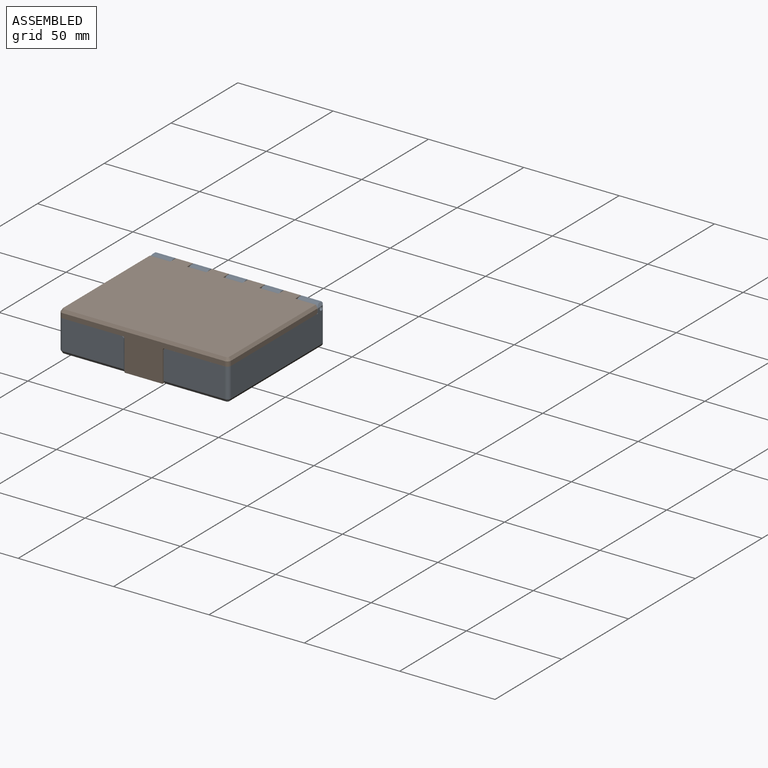
[diagram: assembled view]
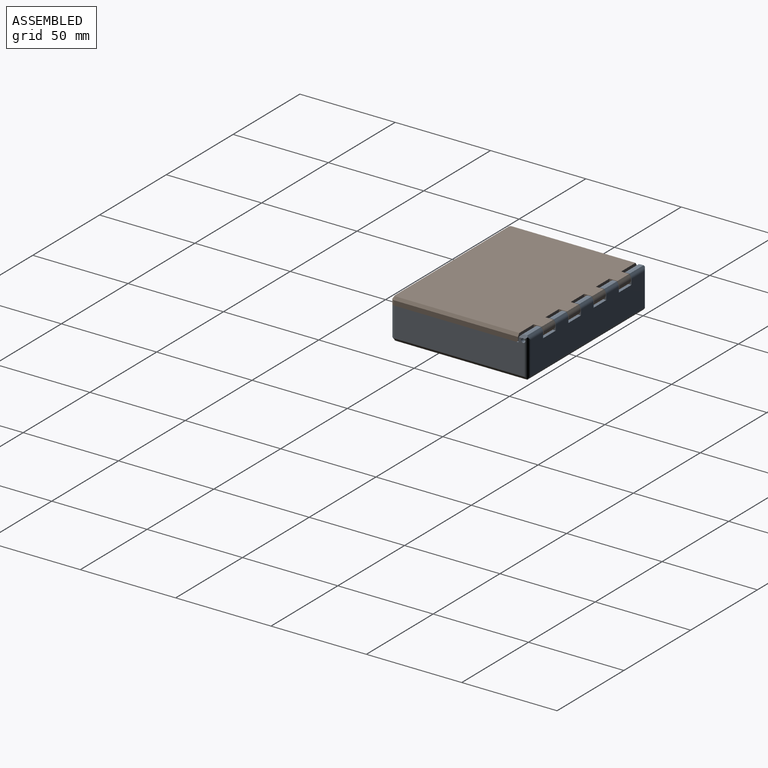
[diagram: assembled view, second angle]
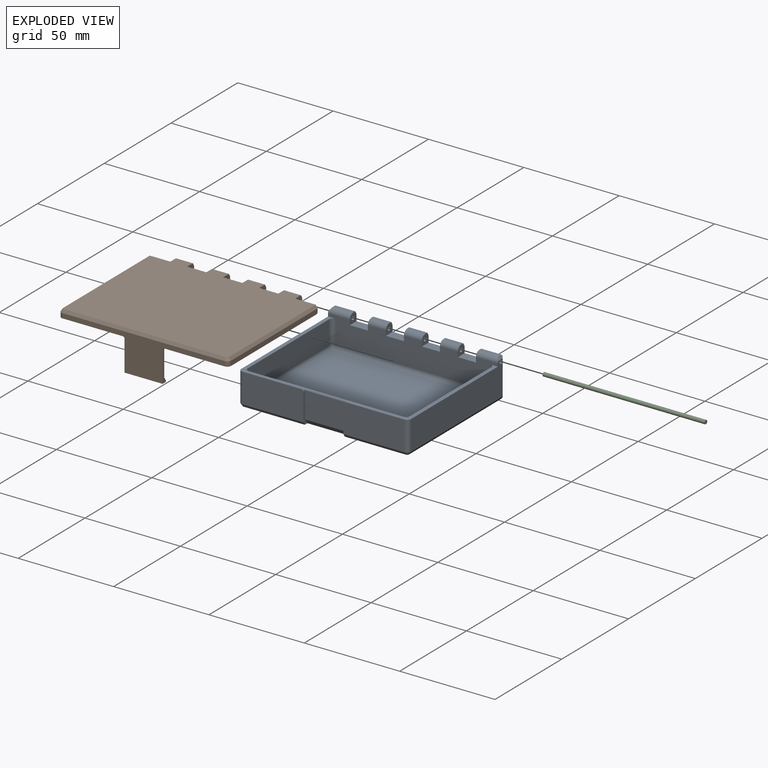
[diagram: exploded view]
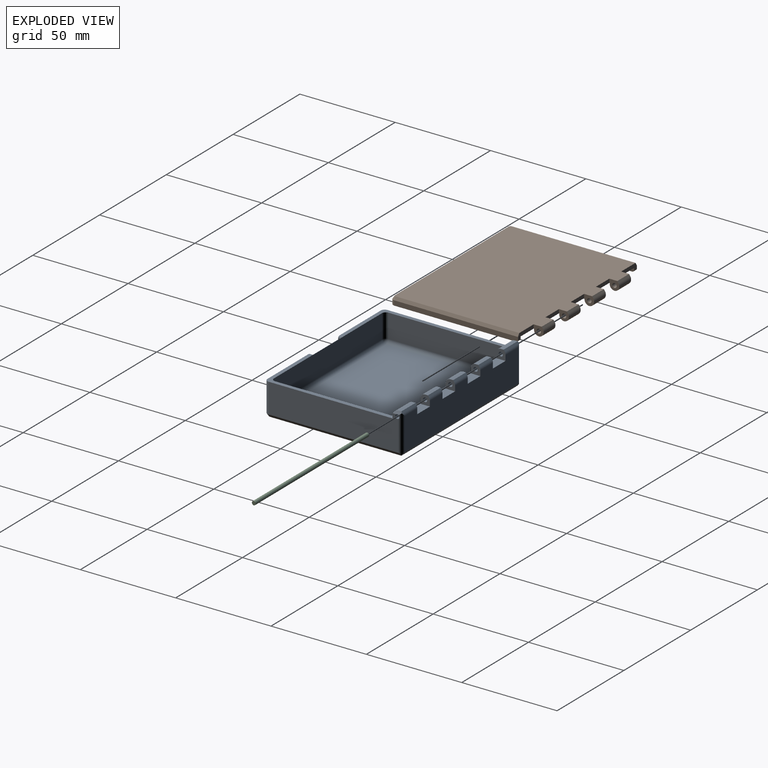
[diagram: exploded view, second angle]
ASSEMBLY  parts=3 mates=2
PART A: 84 faces, bbox 89x72x21 mm
  f0: plane 85x17.24mm, normal (0,1,0), area 1360.1mm2, adj f5,f20,f21,f22,f24,f25,f27,f28
  f1: plane 0.04x0.02mm, normal (1,0,0), area 0mm2, adj f2,f5,f79
  f2: cylinder r=1.1mm len=11.44mm, axis (-1,0,0), area 78.9mm2, adj f1,f5,f14,f30,f79
  f3: cylinder r=2.5mm len=11.44mm, axis (-1,0,0), area 43.1mm2, adj f12,f14,f30,f31,f79
  f4: plane 10.87x0.88mm, normal (0,0.83,0.55), area 11.2mm2, adj f5,f30,f31,f60,f79
  f5: cylinder r=2mm len=19.76mm, axis (0,0,1), area 57.2mm2, adj f0,f1,f2,f4,f14,f56,f57,f60
  f6: plane 68x18mm, normal (-1,0,0), area 1058.5mm2, adj f8,f12,f39,f44,f48,f55,f77,f78
  f7: plane 10.44x1.5mm, normal (0,0,1), area 15.7mm2, adj f20,f48,f52,f78
  f8: plane 67x33mm, normal (0,0,1), area 196.9mm2, adj f6,f9,f11,f12,f17,f37,f39,f65
  f9: plane 32x15.5mm, normal (0,-1,0), area 495.8mm2, adj f8,f35,f37,f39,f53
  f10: plane 67x33mm, normal (0,0,1), area 196.9mm2, adj f12,f13,f14,f16,f17,f36,f40,f67
  f11: plane 61x12.5mm, normal (1,0,0), area 762.5mm2, adj f8,f65,f70,f71
  f12: plane 89x14mm, normal (0,-1,0), area 1049.7mm2, adj f3,f6,f8,f10,f14,f20,f21,f22
  f13: plane 61x12.5mm, normal (-1,0,0), area 762.5mm2, adj f10,f67,f72,f73
  f14: plane 68x18mm, normal (1,0,0), area 1058.5mm2, adj f2,f3,f5,f10,f12,f40,f57,f79
  f15: plane 0.04x0.02mm, normal (-1,0,0), area 0mm2, adj f44,f77,f78
  f16: plane 32x15.5mm, normal (0,-1,0), area 495.8mm2, adj f10,f34,f36,f40,f59
  f17: plane 81x12.5mm, normal (0,1,0), area 1011.5mm2, adj f8,f10,f36,f37,f38,f70,f73,f76
  f18: plane 87x70mm, normal (0,0,-1), area 6048.6mm2, adj f33,f34,f35,f53,f54,f55,f56,f57
  f19: plane 81x61mm, normal (0,0,1), area 4941mm2, adj f66,f71,f72,f76
  f20: plane 5.05x5mm, normal (1,0,0), area 19.3mm2, adj f0,f7,f12,f44,f48,f52,f64,f80
  f21: plane 5.05x5mm, normal (1,0,0), area 19.3mm2, adj f0,f12,f23,f43,f47,f51,f63,f81
  f22: plane 5.05x5mm, normal (-1,0,0), area 19.3mm2, adj f0,f12,f23,f43,f47,f51,f63,f80
  f23: plane 9.44x1.5mm, normal (0,0,1), area 14.2mm2, adj f21,f22,f47,f51
  f24: plane 5.05x5mm, normal (1,0,0), area 19.3mm2, adj f0,f12,f26,f42,f46,f50,f62,f82
  f25: plane 5.05x5mm, normal (-1,0,0), area 19.3mm2, adj f0,f12,f26,f42,f46,f50,f62,f81
  f26: plane 9.44x1.5mm, normal (0,0,1), area 14.2mm2, adj f24,f25,f46,f50
  f27: plane 5.05x5mm, normal (1,0,0), area 19.3mm2, adj f0,f12,f29,f41,f45,f49,f61,f83
  f28: plane 5.05x5mm, normal (-1,0,0), area 19.3mm2, adj f0,f12,f29,f41,f45,f49,f61,f82
  f29: plane 9.44x1.5mm, normal (0,0,1), area 14.2mm2, adj f27,f28,f45,f49
  f30: plane 5.05x5mm, normal (-1,0,0), area 19.3mm2, adj f0,f2,f3,f4,f12,f31,f60,f83
  f31: plane 10.44x1.5mm, normal (0,0,1), area 15.7mm2, adj f3,f4,f30,f79
  f32: plane 21x13.64mm, normal (0,-1,0), area 286.5mm2, adj f33,f34,f35,f38
  f33: plane 21x2.36mm, normal (0,-0.82,-0.57), area 60.4mm2, adj f18,f32,f34,f35
  f34: plane 16x2.95mm, normal (-1,0,0), area 22mm2, adj f16,f18,f32,f33,f36,f59
  f35: plane 16x2.95mm, normal (1,0,0), area 22mm2, adj f9,f18,f32,f33,f37,f53
  f36: cylinder r=1mm len=2mm, axis (0,-1,0), area 2.6mm2, adj f10,f16,f17,f34,f38
  f37: cylinder r=1mm len=2mm, axis (0,1,0), area 2.6mm2, adj f8,f9,f17,f35,f38
  f38: cylinder r=1mm len=22.4mm, axis (-1,0,0), area 27.2mm2, adj f17,f32,f36,f37
  f39: cylinder r=2mm len=15.5mm, axis (0,0,1), area 48.7mm2, adj f6,f8,f9,f54
  f40: cylinder r=2mm len=15.5mm, axis (0,0,-1), area 48.7mm2, adj f10,f14,f16,f58
  f41: cylinder r=1.1mm len=9.44mm, axis (-1,0,0), area 65.3mm2, adj f27,f28
  f42: cylinder r=1.1mm len=9.44mm, axis (-1,0,0), area 65.3mm2, adj f24,f25
  f43: cylinder r=1.1mm len=9.44mm, axis (-1,0,0), area 65.3mm2, adj f21,f22
  f44: cylinder r=1.1mm len=11.44mm, axis (-1,0,0), area 78.9mm2, adj f6,f15,f20,f77,f78
  f45: cylinder r=2.5mm len=9.44mm, axis (-1,0,0), area 37.1mm2, adj f12,f27,f28,f29
  f46: cylinder r=2.5mm len=9.44mm, axis (-1,0,0), area 37.1mm2, adj f12,f24,f25,f26
  f47: cylinder r=2.5mm len=9.44mm, axis (-1,0,0), area 37.1mm2, adj f12,f21,f22,f23
  f48: cylinder r=2.5mm len=11.44mm, axis (-1,0,0), area 43.1mm2, adj f6,f7,f12,f20,f78
  f49: plane 9.44x0.87mm, normal (0,0.83,0.55), area 9.9mm2, adj f27,f28,f29,f61
  f50: plane 9.44x0.87mm, normal (0,0.83,0.55), area 9.9mm2, adj f24,f25,f26,f62
  f51: plane 9.44x0.87mm, normal (0,0.83,0.55), area 9.9mm2, adj f21,f22,f23,f63
  f52: plane 10.87x0.88mm, normal (0,0.83,0.55), area 11.2mm2, adj f7,f20,f64,f77,f78
  f53: plane 32x1.5mm, normal (0,-0.83,-0.55), area 57.7mm2, adj f9,f18,f35,f54
  f54: cone r=1mm half-angle=33.7deg, axis (0,0,1), area 4.2mm2, adj f18,f39,f53,f55
  f55: plane 69.41x1.5mm, normal (-0.83,0,-0.55), area 124.5mm2, adj f6,f18,f54,f56,f77
  f56: plane 87.83x1.5mm, normal (0,0.83,-0.55), area 157.1mm2, adj f0,f5,f18,f55,f57,f77
  f57: plane 69.41x1.5mm, normal (0.83,0,-0.55), area 124.5mm2, adj f5,f14,f18,f56,f58
  f58: cone r=1mm half-angle=33.7deg, axis (0,0,1), area 4.2mm2, adj f18,f40,f57,f59
  f59: plane 32x1.5mm, normal (0,-0.83,-0.55), area 57.7mm2, adj f16,f18,f34,f58
  f60: cylinder r=2.5mm len=10.67mm, axis (-1,0,0), area 14.8mm2, adj f0,f4,f5,f30
  f61: cylinder r=2.5mm len=9.44mm, axis (-1,0,0), area 13.9mm2, adj f0,f27,f28,f49
  f62: cylinder r=2.5mm len=9.44mm, axis (-1,0,0), area 13.9mm2, adj f0,f24,f25,f50
  f63: cylinder r=2.5mm len=9.44mm, axis (-1,0,0), area 13.9mm2, adj f0,f21,f22,f51
  f64: cylinder r=2.5mm len=10.67mm, axis (-1,0,0), area 14.8mm2, adj f0,f20,f52,f77
  f65: cylinder r=2mm len=12.5mm, axis (0,0,1), area 39.3mm2, adj f8,f11,f12,f68
  f66: cylinder r=2mm len=81mm, axis (1,0,0), area 254.5mm2, adj f12,f19,f68,f69
  f67: cylinder r=2mm len=12.5mm, axis (0,0,-1), area 39.3mm2, adj f10,f12,f13,f69
  f68: sphere r=2mm, area 6.3mm2, adj f65,f66,f71
  f69: sphere r=2mm, area 6.3mm2, adj f66,f67,f72
  f70: cylinder r=2mm len=12.5mm, axis (0,0,-1), area 39.3mm2, adj f8,f11,f17,f74
  f71: cylinder r=2mm len=61mm, axis (0,1,0), area 191.6mm2, adj f11,f19,f68,f74
  f72: cylinder r=2mm len=61mm, axis (0,-1,0), area 191.6mm2, adj f13,f19,f69,f75
  f73: cylinder r=2mm len=12.5mm, axis (0,0,1), area 39.3mm2, adj f10,f13,f17,f75
  f74: sphere r=2mm, area 6.3mm2, adj f70,f71,f76
  f75: sphere r=2mm, area 6.3mm2, adj f72,f73,f76
  f76: cylinder r=2mm len=81mm, axis (-1,0,0), area 254.5mm2, adj f17,f19,f74,f75
  f77: cylinder r=2mm len=19.76mm, axis (0,0,-1), area 57.2mm2, adj f0,f6,f15,f44,f52,f55,f56,f64
  f78: plane 4.21x1.5mm, normal (-0.83,0,0.55), area 5.7mm2, adj f6,f7,f15,f44,f48,f52,f77
  f79: plane 4.21x1.5mm, normal (0.83,0,0.55), area 5.7mm2, adj f1,f2,f3,f4,f5,f14,f31
  f80: plane 9.44x5mm, normal (0,0,1), area 47.2mm2, adj f0,f12,f20,f22
  f81: plane 9.44x5mm, normal (0,0,1), area 47.2mm2, adj f0,f12,f21,f25
  f82: plane 9.44x5mm, normal (0,0,1), area 47.2mm2, adj f0,f12,f24,f28
  f83: plane 9.44x5mm, normal (0,0,1), area 47.2mm2, adj f0,f12,f27,f30
PART B: 80 faces, bbox 89x72x21 mm
  f0: plane 62.8x2mm, normal (-1,0,0), area 125.4mm2, adj f1,f6,f62,f63,f66
  f1: plane 85x65mm, normal (0,0,1), area 5513.4mm2, adj f0,f8,f9,f11,f12,f13,f15,f16
  f2: plane 20x0.4mm, normal (0,0,1), area 8mm2, adj f5,f28,f40,f53
  f3: plane 20x0.4mm, normal (0,0,1), area 8mm2, adj f5,f40,f50,f52
  f4: plane 20x0.4mm, normal (0,0,1), area 8mm2, adj f5,f40,f47,f49
  f5: plane 16x2.48mm, normal (1,0,0), area 20.9mm2, adj f2,f3,f4,f28,f38,f39,f43,f46
  f6: plane 65.8x33.5mm, normal (0,0,1), area 194.6mm2, adj f0,f24,f26,f28,f43,f45,f63,f66
  f7: plane 87x70mm, normal (0,0,-1), area 5872.8mm2, adj f9,f11,f13,f15,f17,f19,f21,f22
  f8: plane 8.84x0.5mm, normal (0,-1,0), area 4.4mm2, adj f1,f9,f11,f37
  f9: plane 5.2x5mm, normal (1,0,0), area 17.8mm2, adj f1,f7,f8,f10,f33,f37,f58,f72
  f10: plane 8.84x0.24mm, normal (0,1,0), area 2.1mm2, adj f9,f11,f37,f79
  f11: plane 5.2x5mm, normal (-1,0,0), area 17.8mm2, adj f1,f7,f8,f10,f33,f37,f61,f72
  f12: plane 8.84x0.5mm, normal (0,-1,0), area 4.4mm2, adj f1,f13,f15,f36
  f13: plane 5.2x5mm, normal (1,0,0), area 17.8mm2, adj f1,f7,f12,f14,f32,f36,f60,f73
  f14: plane 8.84x0.24mm, normal (0,1,0), area 2.1mm2, adj f13,f15,f36,f78
  f15: plane 5.2x5mm, normal (-1,0,0), area 17.8mm2, adj f1,f7,f12,f14,f32,f36,f58,f73
  f16: plane 8.84x0.5mm, normal (0,-1,0), area 4.4mm2, adj f1,f17,f19,f35
  f17: plane 5.2x5mm, normal (1,0,0), area 17.8mm2, adj f1,f7,f16,f18,f31,f35,f59,f74
  f18: plane 8.84x0.24mm, normal (0,1,0), area 2.1mm2, adj f17,f19,f35,f77
  f19: plane 5.2x5mm, normal (-1,0,0), area 17.8mm2, adj f1,f7,f16,f18,f31,f35,f60,f74
  f20: plane 8.84x0.5mm, normal (0,-1,0), area 4.4mm2, adj f1,f21,f22,f34
  f21: plane 5.2x5mm, normal (-1,0,0), area 17.8mm2, adj f1,f7,f20,f23,f30,f34,f59,f75
  f22: plane 5.2x5mm, normal (1,0,0), area 17.8mm2, adj f1,f7,f20,f23,f30,f34,f62,f75
  f23: plane 8.84x0.24mm, normal (0,1,0), area 2.1mm2, adj f21,f22,f34,f76
  f24: plane 81x2mm, normal (0,1,0), area 162mm2, adj f1,f6,f29,f42,f63,f64
  f25: plane 62.8x2mm, normal (1,0,0), area 125.4mm2, adj f1,f29,f61,f64,f65
  f26: plane 64.8x2.5mm, normal (1,0,0), area 161.8mm2, adj f6,f45,f62,f66,f71
  f27: plane 64.8x2.5mm, normal (-1,0,0), area 161.8mm2, adj f29,f44,f61,f65,f67
  f28: plane 85x19.5mm, normal (0,-1,0), area 552.9mm2, adj f2,f5,f6,f29,f40,f41,f43,f44
  f29: plane 65.8x33.5mm, normal (0,0,1), area 194.6mm2, adj f24,f25,f27,f28,f41,f44,f64,f65
  f30: cylinder r=1.15mm len=8.84mm, axis (-1,0,0), area 63.9mm2, adj f21,f22
  f31: cylinder r=1.15mm len=8.84mm, axis (-1,0,0), area 63.9mm2, adj f17,f19
  f32: cylinder r=1.15mm len=8.84mm, axis (-1,0,0), area 63.9mm2, adj f13,f15
  f33: cylinder r=1.15mm len=8.84mm, axis (-1,0,0), area 63.9mm2, adj f9,f11
  f34: cylinder r=2.5mm len=8.84mm, axis (1,0,0), area 69.5mm2, adj f20,f21,f22,f23
  f35: cylinder r=2.5mm len=8.84mm, axis (-1,0,0), area 69.5mm2, adj f16,f17,f18,f19
  f36: cylinder r=2.5mm len=8.84mm, axis (-1,0,0), area 69.5mm2, adj f12,f13,f14,f15
  f37: cylinder r=2.5mm len=8.84mm, axis (-1,0,0), area 69.5mm2, adj f8,f9,f10,f11
  f38: plane 20x1.57mm, normal (0,0.82,-0.57), area 38.2mm2, adj f5,f40,f55,f57
  f39: plane 20x13.36mm, normal (0,1,0), area 267.3mm2, adj f5,f40,f41,f42,f43,f55
  f40: plane 16x2.48mm, normal (-1,0,0), area 20.9mm2, adj f2,f3,f4,f28,f38,f39,f41,f46
  f41: cylinder r=1mm len=2mm, axis (0,1,0), area 2.4mm2, adj f28,f29,f39,f40,f42
  f42: cylinder r=1mm len=22mm, axis (-1,0,0), area 28.2mm2, adj f24,f39,f41,f43
  f43: cylinder r=1mm len=2mm, axis (0,-1,0), area 2.4mm2, adj f5,f6,f28,f39,f42
  f44: cylinder r=2mm len=2.5mm, axis (0,0,-1), area 7.9mm2, adj f27,f28,f29,f68
  f45: cylinder r=2mm len=2.5mm, axis (0,0,1), area 7.9mm2, adj f6,f26,f28,f70
  f46: plane 20x0.3mm, normal (0,-1,0), area 6mm2, adj f5,f40,f48,f56
  f47: plane 20x0.3mm, normal (0,1,0), area 6mm2, adj f4,f5,f40,f48
  f48: plane 20x0.3mm, normal (0,0,1), area 6mm2, adj f5,f40,f46,f47
  f49: plane 20x0.3mm, normal (0,-1,0), area 6mm2, adj f4,f5,f40,f51
  f50: plane 20x0.3mm, normal (0,1,0), area 6mm2, adj f3,f5,f40,f51
  f51: plane 20x0.3mm, normal (0,0,1), area 6mm2, adj f5,f40,f49,f50
  f52: plane 20x0.3mm, normal (0,-1,0), area 6mm2, adj f3,f5,f40,f54
  f53: plane 20x0.3mm, normal (0,1,0), area 6mm2, adj f2,f5,f40,f54
  f54: plane 20x0.3mm, normal (0,0,1), area 6mm2, adj f5,f40,f52,f53
  f55: cylinder r=0.5mm len=20mm, axis (-1,0,0), area 6.1mm2, adj f5,f38,f39,f40
  f56: cylinder r=0.9mm len=20mm, axis (-1,0,0), area 5.5mm2, adj f5,f40,f46,f57
  f57: cylinder r=0.5mm len=20mm, axis (-1,0,0), area 14.2mm2, adj f5,f38,f40,f56
  f58: plane 10.04x2mm, normal (0,1,0), area 20.1mm2, adj f1,f7,f9,f15
  f59: plane 10.04x2mm, normal (0,1,0), area 20.1mm2, adj f1,f7,f17,f21
  f60: plane 10.04x2mm, normal (0,1,0), area 20.1mm2, adj f1,f7,f13,f19
  f61: plane 11.74x3mm, normal (0,1,0), area 24.7mm2, adj f1,f7,f11,f25,f27,f65,f67
  f62: plane 11.74x3mm, normal (0,1,0), area 24.7mm2, adj f0,f1,f7,f22,f26,f66,f71
  f63: cylinder r=2mm len=2mm, axis (0,0,1), area 6.3mm2, adj f0,f1,f6,f24
  f64: cylinder r=2mm len=2mm, axis (0,0,1), area 6.3mm2, adj f1,f24,f25,f29
  f65: cylinder r=1mm len=2mm, axis (1,0,0), area 3.1mm2, adj f25,f27,f29,f61
  f66: cylinder r=1mm len=2mm, axis (1,0,0), area 3.1mm2, adj f0,f6,f26,f62
  f67: plane 64.8x1.5mm, normal (-0.83,0,-0.55), area 116.8mm2, adj f7,f27,f61,f68
  f68: cone r=1mm half-angle=33.7deg, axis (0,0,1), area 4.2mm2, adj f7,f44,f67,f69
  f69: plane 85x1.5mm, normal (0,-0.83,-0.55), area 153.2mm2, adj f7,f28,f68,f70
  f70: cone r=1mm half-angle=33.7deg, axis (0,0,1), area 4.2mm2, adj f7,f45,f69,f71
  f71: plane 64.8x1.5mm, normal (0.83,0,-0.55), area 116.8mm2, adj f7,f26,f62,f70
  f72: plane 8.84x0.87mm, normal (0,0.83,-0.55), area 9.2mm2, adj f7,f9,f11,f79
  f73: plane 8.84x0.87mm, normal (0,0.83,-0.55), area 9.2mm2, adj f7,f13,f15,f78
  f74: plane 8.84x0.87mm, normal (0,0.83,-0.55), area 9.2mm2, adj f7,f17,f19,f77
  f75: plane 8.84x0.87mm, normal (0,0.83,-0.55), area 9.2mm2, adj f7,f21,f22,f76
  f76: cylinder r=2.5mm len=8.84mm, axis (-1,0,0), area 13mm2, adj f21,f22,f23,f75
  f77: cylinder r=2.5mm len=8.84mm, axis (-1,0,0), area 13mm2, adj f17,f18,f19,f74
  f78: cylinder r=2.5mm len=8.84mm, axis (-1,0,0), area 13mm2, adj f13,f14,f15,f73
  f79: cylinder r=2.5mm len=8.84mm, axis (-1,0,0), area 13mm2, adj f9,f10,f11,f72
PART C: 3 faces, bbox 2x85x2 mm
  f0: cylinder r=1mm len=85mm, axis (0,1,0), area 534.1mm2, adj f1,f2
  f1: plane 2x2mm, normal (0,-1,0), area 3.1mm2, adj f0
  f2: plane 2x2mm, normal (0,1,0), area 3.1mm2, adj f0
PLACE A rot(axis=(0.9,0,0.43),0deg) t=(-108.7,12.22,0)mm fixed
PLACE B rot(axis=(0,1,0),180deg) t=(-64.2,49.72,21)mm
PLACE C rot(axis=(0,0,-1),90deg) t=(-66.2,47.22,18.5)mm
MATE cylindrical B.f30 <-> C.f0  axis (1,0,0) through (-103.68,47.22,18.5)mm
MATE planar A.f6 <-> B.f26  axis (-1,0,0) through (-153.2,13.86,9.29)mm
